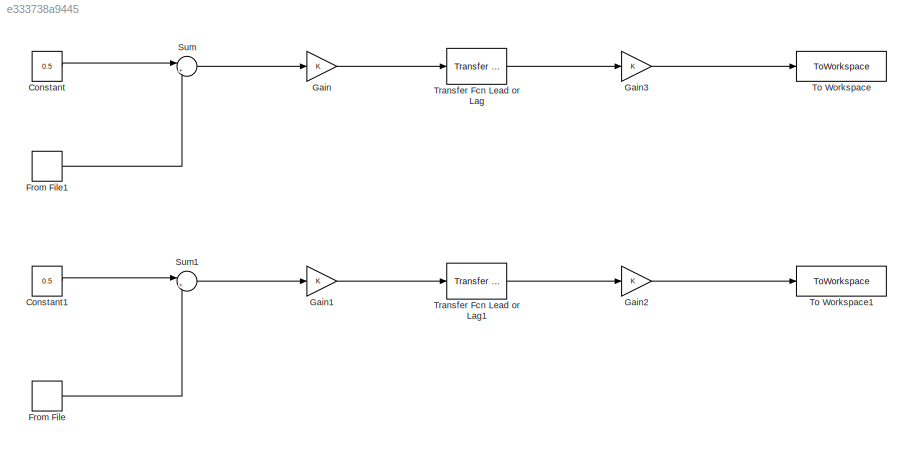
MODEL slx_e333738a9445
KIND model
CONFIG AbsTol = auto
CONFIG EnableMultiTasking = off
CONFIG FixedStep = auto
CONFIG MaxStep = auto
CONFIG MinStep = auto
CONFIG RelTol = 1e-3
CONFIG SampleTimeConstraint = Unconstrained
CONFIG SolverName = VariableStepAuto
CONFIG StartTime = 0.0
CONFIG StopTime = 10.0
BLOCK [Constant] Constant
  Value = 0.5
BLOCK [Constant] Constant1
  Value = 0.5
BLOCK [FromFile] From File
  FileName = c
  SampleTime = 0
BLOCK [FromFile] From File1
  FileName = c
  SampleTime = 0
BLOCK [Gain] Gain
  Gain = K
BLOCK [Gain] Gain1
  Gain = K
BLOCK [Gain] Gain2
  AttributesFormatString = pi/180
  Gain = K
BLOCK [Gain] Gain3
  AttributesFormatString = pi/180
  Gain = K
BLOCK [Sum] Sum
  Inputs = |+-
  Ports = [2, 1]
BLOCK [Sum] Sum1
  Inputs = |+-
  Ports = [2, 1]
BLOCK [ToWorkspace] To Workspace
  AttributesFormatString = send to workspace
  FixptAsFi = on
  MaxDataPoints = inf
  Ports = [1]
  SampleTime = -1
  SaveFormat = Timeseries
  VariableName = simout
BLOCK [ToWorkspace] To Workspace1
  AttributesFormatString = send to workspace
  FixptAsFi = on
  MaxDataPoints = inf
  Ports = [1]
  SampleTime = -1
  SaveFormat = Timeseries
  VariableName = simout1
BLOCK [Reference] Transfer Fcn Lead or Lag  REF=simulink/Discrete/Transfer Fcn
Lead or Lag
  AttributesFormatString = lead/lag
  Ports = [1, 1]
  SourceBlock = simulink/Discrete/Transfer Fcn\nLead or Lag
  SourceProductBaseCode = SL
  SourceType = Lead or Lag Compensator
BLOCK [Reference] Transfer Fcn Lead or Lag1  REF=simulink/Discrete/Transfer Fcn
Lead or Lag
  AttributesFormatString = lead/lag
  Ports = [1, 1]
  SourceBlock = simulink/Discrete/Transfer Fcn\nLead or Lag
  SourceProductBaseCode = SL
  SourceType = Lead or Lag Compensator
LINE Constant1:1 -> Sum1:1
LINE Constant:1 -> Sum:1
LINE From File1:1 -> Sum:2
LINE From File:1 -> Sum1:2
LINE Gain1:1 -> Transfer Fcn Lead or Lag1:1
LINE Gain2:1 -> To Workspace1:1
LINE Gain3:1 -> To Workspace:1
LINE Gain:1 -> Transfer Fcn Lead or Lag:1
LINE Sum1:1 -> Gain1:1
LINE Sum:1 -> Gain:1
LINE Transfer Fcn Lead or Lag1:1 -> Gain2:1
LINE Transfer Fcn Lead or Lag:1 -> Gain3:1
